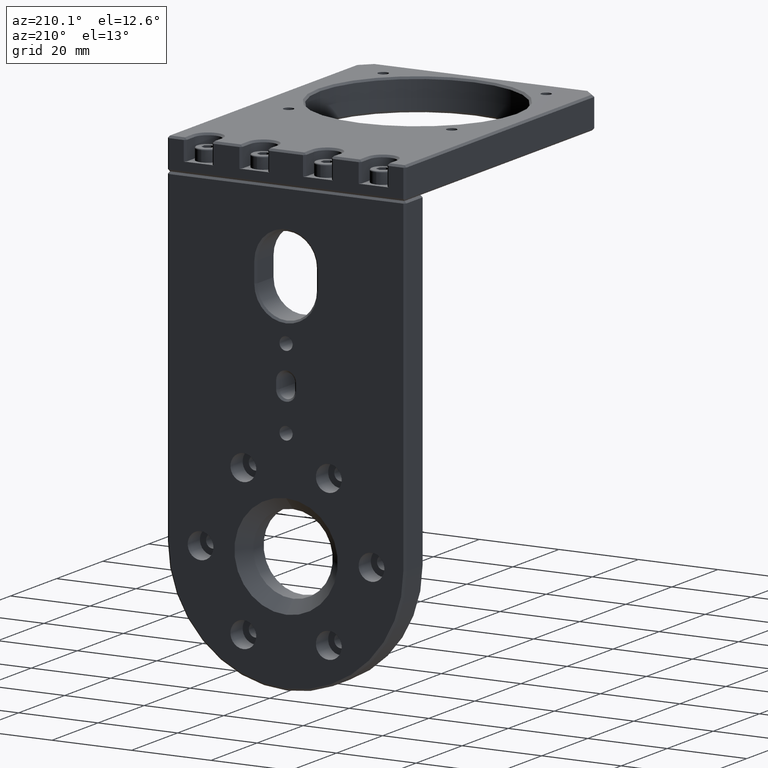
[diagram: clean part render]
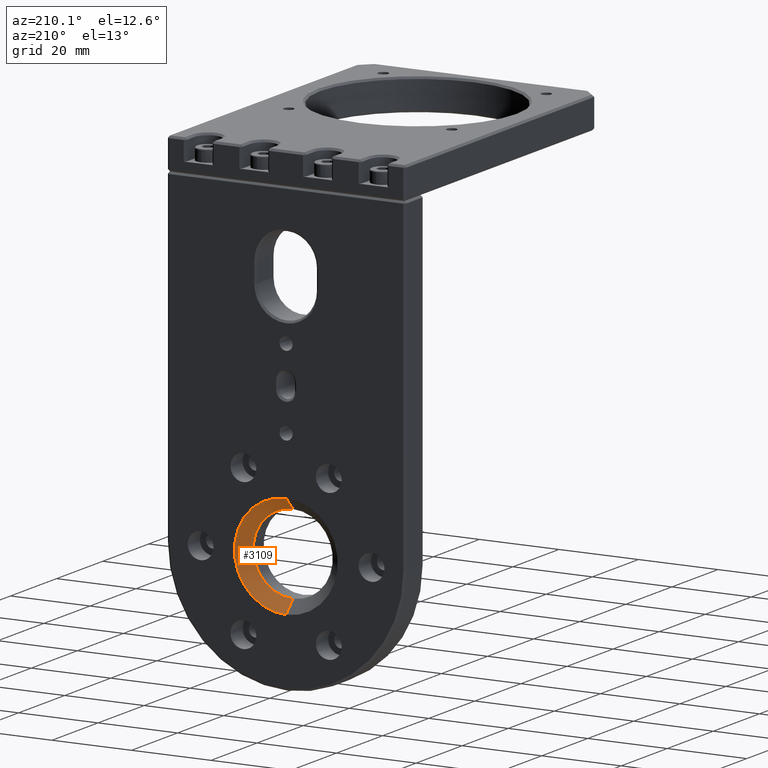
[diagram: same view with one face highlighted and labeled with its STEP entity id]
A machine part, auxiliary view. The second image highlights one B-rep face of the part: STEP entity #3109.
In plain terms, the highlighted conical surface has half-angle 45 deg.
Its self-contained STEP definition (entity closure, byte-faithful):
#266 = EDGE_CURVE ( 'NONE', #5154, #6734, #7366, .T. ) ;
#358 = FACE_OUTER_BOUND ( 'NONE', #1961, .T. ) ;
#613 = DIRECTION ( 'NONE',  ( 4.851104656540970586E-15, 0.7071067811865483499, 0.7071067811865466846 ) ) ;
#688 = CONICAL_SURFACE ( 'NONE', #4409, 12.99999999999999822, 0.7853981633974471688 ) ;
#916 = VERTEX_POINT ( 'NONE', #4361 ) ;
#1055 = CARTESIAN_POINT ( 'NONE',  ( 135.1860777088449765, 138.2181840001565831, 103.4864618752671959 ) ) ;
#1066 = CIRCLE ( 'NONE', #2605, 9.999999999999994671 ) ;
#1222 = VERTEX_POINT ( 'NONE', #3513 ) ;
#1416 = VECTOR ( 'NONE', #613, 1000.000000000000000 ) ;
#1681 = AXIS2_PLACEMENT_3D ( 'NONE', #7384, #3125, #5460 ) ;
#1961 = EDGE_LOOP ( 'NONE', ( #5591, #3683, #2613, #4756 ) ) ;
#2256 = DIRECTION ( 'NONE',  ( -3.491481338843133355E-15, 1.000000000000000000, 3.657132581846951845E-29 ) ) ;
#2428 = CARTESIAN_POINT ( 'NONE',  ( 135.1860777088451187, 141.2181840001565831, 116.4864618752671959 ) ) ;
#2605 = AXIS2_PLACEMENT_3D ( 'NONE', #1055, #5238, #7051 ) ;
#2609 = DIRECTION ( 'NONE',  ( -9.875400524329055064E-15, 0.7071067811865483499, -0.7071067811865466846 ) ) ;
#2613 = ORIENTED_EDGE ( 'NONE', *, *, #7504, .F. ) ;
#2627 = EDGE_CURVE ( 'NONE', #5154, #1222, #1066, .T. ) ;
#3109 = ADVANCED_FACE ( 'NONE', ( #358 ), #688, .F. ) ;
#3125 = DIRECTION ( 'NONE',  ( 3.491481338843133355E-15, -1.000000000000000000, -3.657132581846951845E-29 ) ) ;
#3131 = LINE ( 'NONE', #6995, #5111 ) ;
#3491 = CARTESIAN_POINT ( 'NONE',  ( 135.1860777088449765, 141.2181840001565831, 103.4864618752671959 ) ) ;
#3513 = CARTESIAN_POINT ( 'NONE',  ( 135.1860777088448913, 138.2181840001565831, 93.48646187526719586 ) ) ;
#3683 = ORIENTED_EDGE ( 'NONE', *, *, #266, .T. ) ;
#4274 = CARTESIAN_POINT ( 'NONE',  ( 135.1860777088451187, 141.2181840001565831, 116.4864618752671959 ) ) ;
#4361 = CARTESIAN_POINT ( 'NONE',  ( 135.1860777088448344, 141.2181840001565831, 90.48646187526719586 ) ) ;
#4409 = AXIS2_PLACEMENT_3D ( 'NONE', #3491, #2256, #6483 ) ;
#4604 = EDGE_CURVE ( 'NONE', #1222, #916, #3131, .T. ) ;
#4756 = ORIENTED_EDGE ( 'NONE', *, *, #4604, .F. ) ;
#5111 = VECTOR ( 'NONE', #2609, 1000.000000000000000 ) ;
#5154 = VERTEX_POINT ( 'NONE', #5485 ) ;
#5238 = DIRECTION ( 'NONE',  ( -3.491481338843133355E-15, 1.000000000000000000, 3.657132581846951845E-29 ) ) ;
#5460 = DIRECTION ( 'NONE',  ( 1.067522139062650592E-14, 0.0000000000000000000, 1.000000000000000000 ) ) ;
#5485 = CARTESIAN_POINT ( 'NONE',  ( 135.1860777088450902, 138.2181840001565831, 113.4864618752671959 ) ) ;
#5591 = ORIENTED_EDGE ( 'NONE', *, *, #2627, .F. ) ;
#6302 = CIRCLE ( 'NONE', #1681, 12.99999999999999822 ) ;
#6483 = DIRECTION ( 'NONE',  ( -1.067522139062650592E-14, 0.0000000000000000000, -1.000000000000000000 ) ) ;
#6734 = VERTEX_POINT ( 'NONE', #4274 ) ;
#6995 = CARTESIAN_POINT ( 'NONE',  ( 135.1860777088448344, 141.2181840001565831, 90.48646187526719586 ) ) ;
#7051 = DIRECTION ( 'NONE',  ( 1.110223024625157172E-14, 0.0000000000000000000, 1.000000000000000000 ) ) ;
#7366 = LINE ( 'NONE', #2428, #1416 ) ;
#7384 = CARTESIAN_POINT ( 'NONE',  ( 135.1860777088449765, 141.2181840001565831, 103.4864618752671959 ) ) ;
#7504 = EDGE_CURVE ( 'NONE', #916, #6734, #6302, .T. ) ;